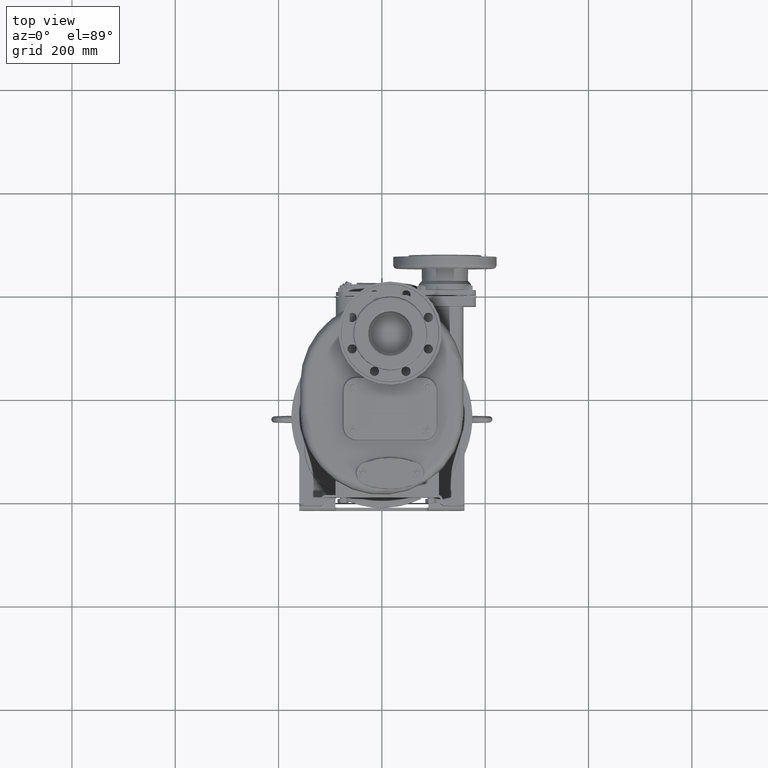
[diagram: clean part render]
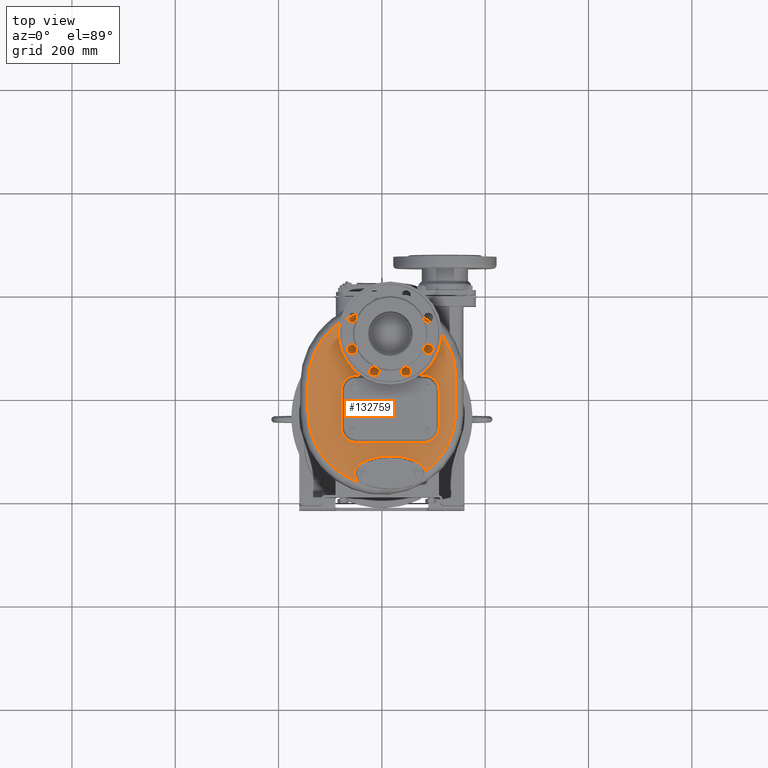
[diagram: same view with one face highlighted and labeled with its STEP entity id]
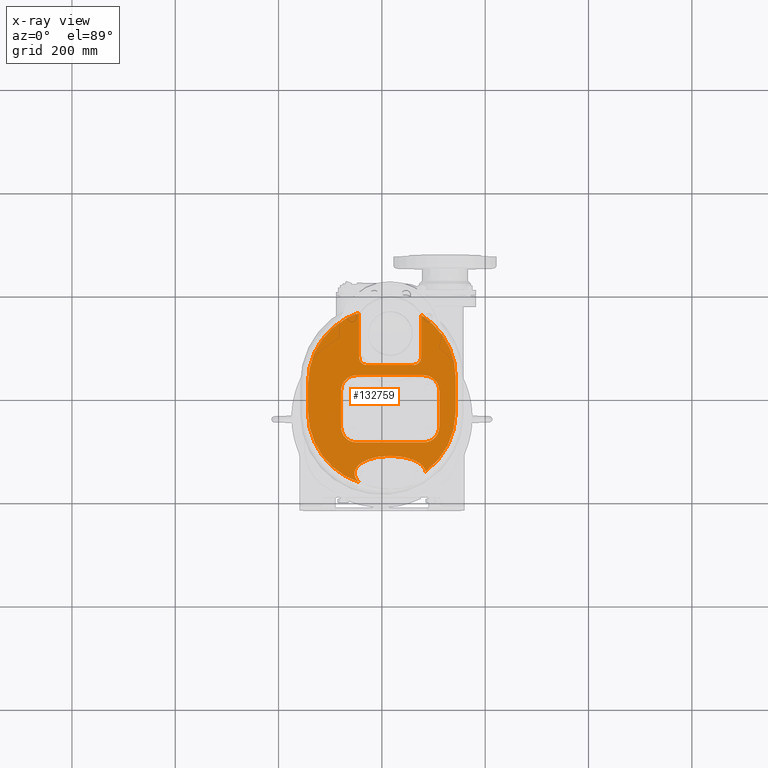
[diagram: x-ray of the same camera — body ghosted, the highlighted face saturated]
A machine part, top view. The second image highlights one B-rep face of the part: STEP entity #132759.
The next image is the same camera in x-ray: the body ghosted, the highlighted face saturated — about 0% of this face is hidden behind the body in this view.
In plain terms, the highlighted planar face has unit normal (0, 0, -1).
Its self-contained STEP definition (entity closure, byte-faithful):
#35876=DIRECTION('',(0.E0,1.E0,0.E0));
#35877=VECTOR('',#35876,8.179538951735E1);
#35878=CARTESIAN_POINT('',(7.6E1,2.63E2,1.56E2));
#35879=LINE('',#35878,#35877);
#35888=CARTESIAN_POINT('',(6.1E1,2.63E2,1.56E2));
#35889=DIRECTION('',(0.E0,0.E0,-1.E0));
#35890=DIRECTION('',(1.E0,0.E0,0.E0));
#35891=AXIS2_PLACEMENT_3D('',#35888,#35889,#35890);
#35893=DIRECTION('',(1.E0,0.E0,0.E0));
#35894=VECTOR('',#35893,9.E1);
#35895=CARTESIAN_POINT('',(-2.9E1,2.48E2,1.56E2));
#35896=LINE('',#35895,#35894);
#35905=CARTESIAN_POINT('',(-2.9E1,2.63E2,1.56E2));
#35906=DIRECTION('',(0.E0,0.E0,-1.E0));
#35907=DIRECTION('',(0.E0,-1.E0,0.E0));
#35908=AXIS2_PLACEMENT_3D('',#35905,#35906,#35907);
#35910=DIRECTION('',(0.E0,-1.E0,0.E0));
#35911=VECTOR('',#35910,8.603391713167E1);
#35912=CARTESIAN_POINT('',(-4.4E1,3.490339171317E2,1.56E2));
#35913=LINE('',#35912,#35911);
#40131=CARTESIAN_POINT('',(-5.299999999844E1,3.800000003638E1,
1.560000459372E2));
#40132=CARTESIAN_POINT('',(-5.299991556704E1,3.779914204129E1,
1.560000906800E2));
#40133=CARTESIAN_POINT('',(-5.299265250868E1,3.739752374237E1,
1.559999579153E2));
#40134=CARTESIAN_POINT('',(-5.296195777406E1,3.679551837007E1,
1.560000112766E2));
#40135=CARTESIAN_POINT('',(-5.291097849365E1,3.619354614939E1,
1.559999969785E2));
#40136=CARTESIAN_POINT('',(-5.283981775381E1,3.559137255555E1,
1.560000008096E2));
#40137=CARTESIAN_POINT('',(-5.274823401177E1,3.498875805934E1,
1.559999997831E2));
#40138=CARTESIAN_POINT('',(-5.263591214725E1,3.438550515496E1,
1.560000000581E2));
#40139=CARTESIAN_POINT('',(-5.250231210801E1,3.378151451266E1,
1.559999999844E2));
#40140=CARTESIAN_POINT('',(-5.234706054511E1,3.317656067463E1,
1.560000000042E2));
#40141=CARTESIAN_POINT('',(-5.216972222320E1,3.256957192952E1,
1.559999999989E2));
#40142=CARTESIAN_POINT('',(-5.196963418718E1,3.195965956961E1,
1.560000000003E2));
#40143=CARTESIAN_POINT('',(-5.174593990077E1,3.134592142667E1,
1.559999999999E2));
#40144=CARTESIAN_POINT('',(-5.149783001644E1,3.072813944369E1,1.56E2));
#40145=CARTESIAN_POINT('',(-5.122478709557E1,3.010701098534E1,1.56E2));
#40146=CARTESIAN_POINT('',(-5.092623644484E1,2.948317862121E1,1.56E2));
#40147=CARTESIAN_POINT('',(-5.060165402301E1,2.885734903097E1,1.56E2));
#40148=CARTESIAN_POINT('',(-5.024949692916E1,2.822800989448E1,
1.560000000001E2));
#40149=CARTESIAN_POINT('',(-4.986806202431E1,2.759394113823E1,
1.559999999998E2));
#40150=CARTESIAN_POINT('',(-4.945541630430E1,2.695397735535E1,
1.560000000009E2));
#40151=CARTESIAN_POINT('',(-4.900997448122E1,2.630786786529E1,
1.559999999968E2));
#40152=CARTESIAN_POINT('',(-4.853073275254E1,2.565630746311E1,
1.560000000119E2));
#40153=CARTESIAN_POINT('',(-4.801671051022E1,2.499998516231E1,
1.559999999554E2));
#40154=CARTESIAN_POINT('',(-4.746686230060E1,2.433950962577E1,
1.560000001663E2));
#40155=CARTESIAN_POINT('',(-4.687900499196E1,2.367452169881E1,
1.559999993793E2));
#40156=CARTESIAN_POINT('',(-4.625108293280E1,2.300495876296E1,
1.560000023164E2));
#40157=CARTESIAN_POINT('',(-4.558103566664E1,2.233087258560E1,
1.559999913551E2));
#40158=CARTESIAN_POINT('',(-4.486704207177E1,2.165251375178E1,
1.560000322631E2));
#40159=CARTESIAN_POINT('',(-4.436033381587E1,2.119759699417E1,
1.559999304826E2));
#40160=CARTESIAN_POINT('',(-4.409924901421E1,2.096964950101E1,
1.559999776601E2));
#40162=CARTESIAN_POINT('',(0.E0,1.57E2,1.56E2));
#40163=DIRECTION('',(0.E0,0.E0,1.E0));
#40164=DIRECTION('',(-1.E0,0.E0,0.E0));
#40165=AXIS2_PLACEMENT_3D('',#40162,#40163,#40164);
#40167=DIRECTION('',(0.E0,-1.E0,0.E0));
#40168=VECTOR('',#40167,5.597143148629E1);
#40169=CARTESIAN_POINT('',(-1.43E2,2.129714314863E2,1.56E2));
#40170=LINE('',#40169,#40168);
#40171=CARTESIAN_POINT('',(0.E0,2.129714314863E2,1.56E2));
#40172=DIRECTION('',(0.E0,0.E0,1.E0));
#40173=DIRECTION('',(-3.076923076923E-1,9.514859136041E-1,0.E0));
#40174=AXIS2_PLACEMENT_3D('',#40171,#40172,#40173);
#40176=CARTESIAN_POINT('',(0.E0,2.236632302862E2,1.56E2));
#40177=DIRECTION('',(0.E0,0.E0,1.E0));
#40178=DIRECTION('',(1.E0,0.E0,0.E0));
#40179=AXIS2_PLACEMENT_3D('',#40176,#40177,#40178);
#40181=DIRECTION('',(0.E0,1.E0,0.E0));
#40182=VECTOR('',#40181,6.666323028620E1);
#40183=CARTESIAN_POINT('',(1.43E2,1.57E2,1.56E2));
#40184=LINE('',#40183,#40182);
#40185=CARTESIAN_POINT('',(0.E0,1.57E2,1.56E2));
#40186=DIRECTION('',(0.E0,0.E0,1.E0));
#40187=DIRECTION('',(5.916859136736E-1,-8.061685801123E-1,0.E0));
#40188=AXIS2_PLACEMENT_3D('',#40185,#40186,#40187);
#40190=CARTESIAN_POINT('',(8.461108473852E1,4.171789323653E1,1.560000319229E2));
#40191=CARTESIAN_POINT('',(8.456936190467E1,4.191692953158E1,1.559999751457E2));
#40192=CARTESIAN_POINT('',(8.447860666957E1,4.231628121723E1,1.560000115349E2));
#40193=CARTESIAN_POINT('',(8.432063224216E1,4.291914267276E1,1.559999969092E2));
#40194=CARTESIAN_POINT('',(8.414005483451E1,4.352570534431E1,1.560000008282E2));
#40195=CARTESIAN_POINT('',(8.393647785783E1,4.413583123157E1,1.559999997781E2));
#40196=CARTESIAN_POINT('',(8.370936739076E1,4.474929238611E1,1.560000000595E2));
#40197=CARTESIAN_POINT('',(8.345819094438E1,4.536578655519E1,1.559999999841E2));
#40198=CARTESIAN_POINT('',(8.318239868774E1,4.598491047600E1,1.560000000043E2));
#40199=CARTESIAN_POINT('',(8.288139523039E1,4.660619745292E1,1.559999999989E2));
#40200=CARTESIAN_POINT('',(8.255385837473E1,4.723074438716E1,1.560000000003E2));
#40201=CARTESIAN_POINT('',(8.219835627059E1,4.785957451435E1,1.559999999999E2));
#40202=CARTESIAN_POINT('',(8.181339521719E1,4.849339224116E1,1.56E2));
#40203=CARTESIAN_POINT('',(8.139780971811E1,4.913211900842E1,1.56E2));
#40204=CARTESIAN_POINT('',(8.095047224905E1,4.977552097398E1,1.56E2));
#40205=CARTESIAN_POINT('',(8.047000220828E1,5.042359535994E1,1.56E2));
#40206=CARTESIAN_POINT('',(7.995453285990E1,5.107673697734E1,1.56E2));
#40207=CARTESIAN_POINT('',(7.940220645724E1,5.173515971981E1,1.56E2));
#40208=CARTESIAN_POINT('',(7.881099847664E1,5.239912298422E1,1.56E2));
#40209=CARTESIAN_POINT('',(7.817892297880E1,5.306870751221E1,1.56E2));
#40210=CARTESIAN_POINT('',(7.750366544746E1,5.374391483122E1,1.56E2));
#40211=CARTESIAN_POINT('',(7.678298042941E1,5.442455989674E1,1.56E2));
#40212=CARTESIAN_POINT('',(7.601481930858E1,5.511030927290E1,1.56E2));
#40213=CARTESIAN_POINT('',(7.519638577245E1,5.580112121047E1,1.56E2));
#40214=CARTESIAN_POINT('',(7.432481556470E1,5.649675134347E1,1.56E2));
#40215=CARTESIAN_POINT('',(7.339747203366E1,5.719684869266E1,1.56E2));
#40216=CARTESIAN_POINT('',(7.241130823044E1,5.790090565007E1,1.56E2));
#40217=CARTESIAN_POINT('',(7.136336901621E1,5.860821209321E1,1.56E2));
#40218=CARTESIAN_POINT('',(7.025079938779E1,5.931802983127E1,1.56E2));
#40219=CARTESIAN_POINT('',(6.907033362039E1,6.002935833638E1,1.56E2));
#40220=CARTESIAN_POINT('',(6.781904740582E1,6.074116348679E1,1.56E2));
#40221=CARTESIAN_POINT('',(6.649386788572E1,6.145207360638E1,1.56E2));
#40222=CARTESIAN_POINT('',(6.509191818531E1,6.216064954067E1,1.56E2));
#40223=CARTESIAN_POINT('',(6.361046142250E1,6.286512339224E1,1.56E2));
#40224=CARTESIAN_POINT('',(6.204693796325E1,6.356364185197E1,1.56E2));
#40225=CARTESIAN_POINT('',(6.039910592164E1,6.425399537446E1,1.56E2));
#40226=CARTESIAN_POINT('',(5.866501482611E1,6.493392869582E1,1.56E2));
#40227=CARTESIAN_POINT('',(5.684315658293E1,6.560078985197E1,1.56E2));
#40228=CARTESIAN_POINT('',(5.493250007385E1,6.625193618863E1,1.56E2));
#40229=CARTESIAN_POINT('',(5.293253163555E1,6.688433551507E1,1.56E2));
#40230=CARTESIAN_POINT('',(5.084344318936E1,6.749500820471E1,1.56E2));
#40231=CARTESIAN_POINT('',(4.866597114129E1,6.808064686175E1,1.56E2));
#40232=CARTESIAN_POINT('',(4.640180577853E1,6.863804364278E1,1.56E2));
#40233=CARTESIAN_POINT('',(4.405324963341E1,6.916373184947E1,1.56E2));
#40234=CARTESIAN_POINT('',(4.162369809895E1,6.965444994602E1,1.56E2));
#40235=CARTESIAN_POINT('',(3.911726017919E1,7.010673963199E1,1.56E2));
#40236=CARTESIAN_POINT('',(3.653909279869E1,7.051751482915E1,1.56E2));
#40237=CARTESIAN_POINT('',(3.389525950393E1,7.088353755273E1,1.56E2));
#40238=CARTESIAN_POINT('',(3.119255619890E1,7.120214114593E1,1.56E2));
#40239=CARTESIAN_POINT('',(2.843897820383E1,7.147056982729E1,1.56E2));
#40240=CARTESIAN_POINT('',(2.564269299743E1,7.168677036972E1,1.56E2));
#40241=CARTESIAN_POINT('',(2.281315562618E1,7.184880096208E1,1.56E2));
#40242=CARTESIAN_POINT('',(1.995970727616E1,7.195528636675E1,1.56E2));
#40243=CARTESIAN_POINT('',(1.709238329904E1,7.200540722053E1,1.56E2));
#40244=CARTESIAN_POINT('',(1.422135466750E1,7.199854660343E1,1.56E2));
#40245=CARTESIAN_POINT('',(1.135675376450E1,7.193496677173E1,1.56E2));
#40246=CARTESIAN_POINT('',(8.508581252920E0,7.181511242007E1,1.56E2));
#40247=CARTESIAN_POINT('',(5.686917589204E0,7.164002109046E1,1.56E2));
#40248=CARTESIAN_POINT('',(2.900953951262E0,7.141133346693E1,1.56E2));
#40249=CARTESIAN_POINT('',(1.597337441570E-1,7.113077946308E1,1.56E2));
#40250=CARTESIAN_POINT('',(-2.528304128456E0,7.080088582516E1,1.56E2));
#40251=CARTESIAN_POINT('',(-5.156076583602E0,7.042410978393E1,1.56E2));
#40252=CARTESIAN_POINT('',(-7.716395346625E0,7.000345861151E1,1.56E2));
#40253=CARTESIAN_POINT('',(-1.020399119432E1,6.954201321911E1,1.56E2));
#40254=CARTESIAN_POINT('',(-1.261357428653E1,6.904298514380E1,1.56E2));
#40255=CARTESIAN_POINT('',(-1.494146479671E1,6.850980431107E1,1.56E2));
#40256=CARTESIAN_POINT('',(-1.718435878816E1,6.794573512168E1,1.56E2));
#40257=CARTESIAN_POINT('',(-1.934017844812E1,6.735425090420E1,1.56E2));
#40258=CARTESIAN_POINT('',(-2.140738428800E1,6.673852869665E1,1.56E2));
#40259=CARTESIAN_POINT('',(-2.338542715983E1,6.610185182708E1,1.56E2));
#40260=CARTESIAN_POINT('',(-2.527421210025E1,6.544718613532E1,1.56E2));
#40261=CARTESIAN_POINT('',(-2.707448441654E1,6.477747442161E1,1.56E2));
#40262=CARTESIAN_POINT('',(-2.878728965858E1,6.409538083755E1,1.56E2));
#40263=CARTESIAN_POINT('',(-3.041435682394E1,6.340342411107E1,1.56E2));
#40264=CARTESIAN_POINT('',(-3.195760825661E1,6.270390222167E1,1.56E2));
#40265=CARTESIAN_POINT('',(-3.341943040072E1,6.199889138835E1,1.56E2));
#40266=CARTESIAN_POINT('',(-3.480234916491E1,6.129029259574E1,1.56E2));
#40267=CARTESIAN_POINT('',(-3.610918267017E1,6.057975075796E1,1.56E2));
#40268=CARTESIAN_POINT('',(-3.734282663441E1,5.986872688056E1,1.56E2));
#40269=CARTESIAN_POINT('',(-3.850629347607E1,5.915853797577E1,1.56E2));
#40270=CARTESIAN_POINT('',(-3.960257062760E1,5.845019899405E1,1.56E2));
#40271=CARTESIAN_POINT('',(-4.063482667284E1,5.774473232284E1,1.56E2));
#40272=CARTESIAN_POINT('',(-4.160602624233E1,5.704274570803E1,1.56E2));
#40273=CARTESIAN_POINT('',(-4.251929453237E1,5.634482428323E1,1.56E2));
#40274=CARTESIAN_POINT('',(-4.337752560947E1,5.565150040431E1,1.56E2));
#40275=CARTESIAN_POINT('',(-4.418353062450E1,5.496294106371E1,1.56E2));
#40276=CARTESIAN_POINT('',(-4.494010553563E1,5.427938437101E1,1.56E2));
#40277=CARTESIAN_POINT('',(-4.564968507667E1,5.360111362838E1,1.56E2));
#40278=CARTESIAN_POINT('',(-4.631468169863E1,5.292809857070E1,1.56E2));
#40279=CARTESIAN_POINT('',(-4.693741892553E1,5.226038777362E1,1.56E2));
#40280=CARTESIAN_POINT('',(-4.751994651119E1,5.159804294989E1,1.56E2));
#40281=CARTESIAN_POINT('',(-4.806431165344E1,5.094088033667E1,1.56E2));
#40282=CARTESIAN_POINT('',(-4.857237323649E1,5.028884761643E1,1.56E2));
#40283=CARTESIAN_POINT('',(-4.904581720419E1,4.964186295639E1,1.56E2));
#40284=CARTESIAN_POINT('',(-4.948630659575E1,4.899967744185E1,1.56E2));
#40285=CARTESIAN_POINT('',(-4.989530468740E1,4.836216648646E1,1.56E2));
#40286=CARTESIAN_POINT('',(-5.027421423514E1,4.772911099318E1,1.56E2));
#40287=CARTESIAN_POINT('',(-5.062431908785E1,4.710024263552E1,1.56E2));
#40288=CARTESIAN_POINT('',(-5.094675969572E1,4.647539745349E1,1.56E2));
#40289=CARTESIAN_POINT('',(-5.124264267001E1,4.585429255175E1,1.56E2));
#40290=CARTESIAN_POINT('',(-5.151294154204E1,4.523661428940E1,1.56E2));
#40291=CARTESIAN_POINT('',(-5.175861574098E1,4.462199835506E1,1.56E2));
#40292=CARTESIAN_POINT('',(-5.198042608768E1,4.401015543234E1,
1.560000000002E2));
#40293=CARTESIAN_POINT('',(-5.217899374015E1,4.340104628295E1,
1.559999999994E2));
#40294=CARTESIAN_POINT('',(-5.235495335957E1,4.279462042535E1,
1.560000000022E2));
#40295=CARTESIAN_POINT('',(-5.250889680530E1,4.219036140037E1,
1.559999999919E2));
#40296=CARTESIAN_POINT('',(-5.264140944417E1,4.158763892848E1,
1.560000000302E2));
#40297=CARTESIAN_POINT('',(-5.275299643900E1,4.098570455102E1,
1.559999998873E2));
#40298=CARTESIAN_POINT('',(-5.284377740780E1,4.038479381298E1,
1.560000004207E2));
#40299=CARTESIAN_POINT('',(-5.291395557565E1,3.978534764933E1,
1.559999984298E2));
#40300=CARTESIAN_POINT('',(-5.296379684764E1,3.918775735068E1,
1.560000058600E2));
#40301=CARTESIAN_POINT('',(-5.299344914867E1,3.859233047235E1,
1.559999781301E2));
#40302=CARTESIAN_POINT('',(-5.299999795748E1,3.819716499513E1,
1.560000471230E2));
#40303=CARTESIAN_POINT('',(-5.299999999844E1,3.800000003638E1,
1.560000459372E2));
#40305=DIRECTION('',(-1.E0,2.916941901723E-12,0.E0));
#40306=VECTOR('',#40305,1.299999999988E2);
#40307=CARTESIAN_POINT('',(8.099999999924E1,2.279999999994E2,1.56E2));
#40308=LINE('',#40307,#40306);
#40309=CARTESIAN_POINT('',(-4.9E1,1.98E2,1.56E2));
#40310=DIRECTION('',(0.E0,0.E0,1.E0));
#40311=DIRECTION('',(0.E0,1.E0,0.E0));
#40312=AXIS2_PLACEMENT_3D('',#40309,#40310,#40311);
#40314=DIRECTION('',(-5.417380829739E-12,-1.E0,0.E0));
#40315=VECTOR('',#40314,6.999999999879E1);
#40316=CARTESIAN_POINT('',(-7.899999999937E1,1.979999999992E2,1.56E2));
#40317=LINE('',#40316,#40315);
#40318=CARTESIAN_POINT('',(-4.9E1,1.28E2,1.56E2));
#40319=DIRECTION('',(0.E0,0.E0,1.E0));
#40320=DIRECTION('',(-1.E0,0.E0,0.E0));
#40321=AXIS2_PLACEMENT_3D('',#40318,#40319,#40320);
#40323=DIRECTION('',(1.E0,-2.916941901723E-12,0.E0));
#40324=VECTOR('',#40323,1.299999999988E2);
#40325=CARTESIAN_POINT('',(-4.899999999924E1,9.800000000063E1,1.56E2));
#40326=LINE('',#40325,#40324);
#40327=CARTESIAN_POINT('',(8.1E1,1.28E2,1.56E2));
#40328=DIRECTION('',(0.E0,0.E0,1.E0));
#40329=DIRECTION('',(0.E0,-1.E0,0.E0));
#40330=AXIS2_PLACEMENT_3D('',#40327,#40328,#40329);
#40332=DIRECTION('',(5.417177817528E-12,1.E0,0.E0));
#40333=VECTOR('',#40332,6.999999999879E1);
#40334=CARTESIAN_POINT('',(1.109999999994E2,1.280000000008E2,1.56E2));
#40335=LINE('',#40334,#40333);
#40336=CARTESIAN_POINT('',(8.1E1,1.98E2,1.56E2));
#40337=DIRECTION('',(0.E0,0.E0,1.E0));
#40338=DIRECTION('',(1.E0,0.E0,0.E0));
#40339=AXIS2_PLACEMENT_3D('',#40336,#40337,#40338);
#77244=CARTESIAN_POINT('',(-2.9E1,2.48E2,1.56E2));
#77245=CARTESIAN_POINT('',(6.1E1,2.48E2,1.56E2));
#77246=VERTEX_POINT('',#77244);
#77247=VERTEX_POINT('',#77245);
#77248=CARTESIAN_POINT('',(7.6E1,2.63E2,1.56E2));
#77249=VERTEX_POINT('',#77248);
#77250=CARTESIAN_POINT('',(-4.4E1,2.63E2,1.56E2));
#77251=VERTEX_POINT('',#77250);
#77260=CARTESIAN_POINT('',(1.43E2,2.236632302862E2,1.56E2));
#77261=CARTESIAN_POINT('',(7.6E1,3.447953895173E2,1.56E2));
#77262=VERTEX_POINT('',#77260);
#77263=VERTEX_POINT('',#77261);
#77264=CARTESIAN_POINT('',(1.43E2,1.57E2,1.56E2));
#77265=VERTEX_POINT('',#77264);
#77270=CARTESIAN_POINT('',(-1.43E2,2.129714314863E2,1.56E2));
#77271=CARTESIAN_POINT('',(-1.43E2,1.57E2,1.56E2));
#77272=VERTEX_POINT('',#77270);
#77273=VERTEX_POINT('',#77271);
#77276=CARTESIAN_POINT('',(-4.4E1,3.490339171317E2,1.56E2));
#77277=VERTEX_POINT('',#77276);
#77329=VERTEX_POINT('',#40131);
#77330=VERTEX_POINT('',#40160);
#77332=VERTEX_POINT('',#40190);
#77356=CARTESIAN_POINT('',(8.099999999924E1,2.279999999994E2,1.56E2));
#77357=CARTESIAN_POINT('',(-4.899999999955E1,2.279999999998E2,1.56E2));
#77358=VERTEX_POINT('',#77356);
#77359=VERTEX_POINT('',#77357);
#77360=CARTESIAN_POINT('',(-7.9E1,1.98E2,1.56E2));
#77361=VERTEX_POINT('',#77360);
#77364=CARTESIAN_POINT('',(-7.899999999975E1,1.280000000005E2,1.56E2));
#77365=VERTEX_POINT('',#77364);
#77368=CARTESIAN_POINT('',(-4.9E1,9.8E1,1.56E2));
#77369=VERTEX_POINT('',#77368);
#77372=CARTESIAN_POINT('',(8.099999999955E1,9.800000000025E1,1.56E2));
#77373=VERTEX_POINT('',#77372);
#77376=CARTESIAN_POINT('',(1.11E2,1.98E2,1.56E2));
#77377=VERTEX_POINT('',#77376);
#77380=CARTESIAN_POINT('',(1.109999999994E2,1.280000000008E2,1.56E2));
#77381=VERTEX_POINT('',#77380);
#132714=CARTESIAN_POINT('',(0.E0,1.58E2,1.56E2));
#132715=DIRECTION('',(0.E0,0.E0,-1.E0));
#132716=DIRECTION('',(-1.E0,0.E0,0.E0));
#132717=AXIS2_PLACEMENT_3D('',#132714,#132715,#132716);
#132718=PLANE('',#132717);
#132720=ORIENTED_EDGE('',*,*,#132719,.T.);
#132722=ORIENTED_EDGE('',*,*,#132721,.F.);
#132724=ORIENTED_EDGE('',*,*,#132723,.F.);
#132725=ORIENTED_EDGE('',*,*,#132703,.F.);
#132726=ORIENTED_EDGE('',*,*,#129104,.T.);
#132727=ORIENTED_EDGE('',*,*,#129089,.F.);
#132728=ORIENTED_EDGE('',*,*,#129074,.T.);
#132729=ORIENTED_EDGE('',*,*,#129059,.F.);
#132730=ORIENTED_EDGE('',*,*,#129044,.T.);
#132732=ORIENTED_EDGE('',*,*,#132731,.F.);
#132734=ORIENTED_EDGE('',*,*,#132733,.F.);
#132736=ORIENTED_EDGE('',*,*,#132735,.F.);
#132738=ORIENTED_EDGE('',*,*,#132737,.T.);
#132739=EDGE_LOOP('',(#132720,#132722,#132724,#132725,#132726,#132727,#132728,
#132729,#132730,#132732,#132734,#132736,#132738));
#132740=FACE_OUTER_BOUND('',#132739,.F.);
#132742=ORIENTED_EDGE('',*,*,#132741,.T.);
#132744=ORIENTED_EDGE('',*,*,#132743,.T.);
#132746=ORIENTED_EDGE('',*,*,#132745,.T.);
#132748=ORIENTED_EDGE('',*,*,#132747,.T.);
#132750=ORIENTED_EDGE('',*,*,#132749,.T.);
#132752=ORIENTED_EDGE('',*,*,#132751,.T.);
#132754=ORIENTED_EDGE('',*,*,#132753,.T.);
#132756=ORIENTED_EDGE('',*,*,#132755,.T.);
#132757=EDGE_LOOP('',(#132742,#132744,#132746,#132748,#132750,#132752,#132754,
#132756));
#132758=FACE_BOUND('',#132757,.F.);
#132759=ADVANCED_FACE('',(#132740,#132758),#132718,.F.);
#35892=CIRCLE('',#35891,1.5E1);
#35909=CIRCLE('',#35908,1.5E1);
#40161=B_SPLINE_CURVE_WITH_KNOTS('',3,(#40131,#40132,#40133,#40134,#40135,
#40136,#40137,#40138,#40139,#40140,#40141,#40142,#40143,#40144,#40145,#40146,
#40147,#40148,#40149,#40150,#40151,#40152,#40153,#40154,#40155,#40156,#40157,
#40158,#40159,#40160),.UNSPECIFIED.,.F.,.F.,(4,1,1,1,1,1,1,1,1,1,1,1,1,1,1,1,1,
1,1,1,1,1,1,1,1,1,1,4),(0.E0,3.703703703704E-2,7.407407407407E-2,
1.111111111111E-1,1.481481481481E-1,1.851851851852E-1,2.222222222222E-1,
2.592592592593E-1,2.962962962963E-1,3.333333333333E-1,3.703703703704E-1,
4.074074074074E-1,4.444444444444E-1,4.814814814815E-1,5.185185185185E-1,
5.555555555556E-1,5.925925925926E-1,6.296296296296E-1,6.666666666667E-1,
7.037037037037E-1,7.407407407407E-1,7.777777777778E-1,8.148148148148E-1,
8.518518518519E-1,8.888888888889E-1,9.259259259259E-1,9.629629629630E-1,1.E0),
.UNSPECIFIED.);
#40166=CIRCLE('',#40165,1.43E2);
#40175=CIRCLE('',#40174,1.43E2);
#40180=CIRCLE('',#40179,1.43E2);
#40189=CIRCLE('',#40188,1.43E2);
#40304=B_SPLINE_CURVE_WITH_KNOTS('',3,(#40190,#40191,#40192,#40193,#40194,
#40195,#40196,#40197,#40198,#40199,#40200,#40201,#40202,#40203,#40204,#40205,
#40206,#40207,#40208,#40209,#40210,#40211,#40212,#40213,#40214,#40215,#40216,
#40217,#40218,#40219,#40220,#40221,#40222,#40223,#40224,#40225,#40226,#40227,
#40228,#40229,#40230,#40231,#40232,#40233,#40234,#40235,#40236,#40237,#40238,
#40239,#40240,#40241,#40242,#40243,#40244,#40245,#40246,#40247,#40248,#40249,
#40250,#40251,#40252,#40253,#40254,#40255,#40256,#40257,#40258,#40259,#40260,
#40261,#40262,#40263,#40264,#40265,#40266,#40267,#40268,#40269,#40270,#40271,
#40272,#40273,#40274,#40275,#40276,#40277,#40278,#40279,#40280,#40281,#40282,
#40283,#40284,#40285,#40286,#40287,#40288,#40289,#40290,#40291,#40292,#40293,
#40294,#40295,#40296,#40297,#40298,#40299,#40300,#40301,#40302,#40303),
.UNSPECIFIED.,.F.,.F.,(4,1,1,1,1,1,1,1,1,1,1,1,1,1,1,1,1,1,1,1,1,1,1,1,1,1,1,1,
1,1,1,1,1,1,1,1,1,1,1,1,1,1,1,1,1,1,1,1,1,1,1,1,1,1,1,1,1,1,1,1,1,1,1,1,1,1,1,1,
1,1,1,1,1,1,1,1,1,1,1,1,1,1,1,1,1,1,1,1,1,1,1,1,1,1,1,1,1,1,1,1,1,1,1,1,1,1,1,1,
1,1,1,4),(0.E0,9.009009009009E-3,1.801801801802E-2,2.702702702703E-2,
3.603603603604E-2,4.504504504505E-2,5.405405405405E-2,6.306306306306E-2,
7.207207207207E-2,8.108108108108E-2,9.009009009009E-2,9.909909909910E-2,
1.081081081081E-1,1.171171171171E-1,1.261261261261E-1,1.351351351351E-1,
1.441441441441E-1,1.531531531532E-1,1.621621621622E-1,1.711711711712E-1,
1.801801801802E-1,1.891891891892E-1,1.981981981982E-1,2.072072072072E-1,
2.162162162162E-1,2.252252252252E-1,2.342342342342E-1,2.432432432432E-1,
2.522522522523E-1,2.612612612613E-1,2.702702702703E-1,2.792792792793E-1,
2.882882882883E-1,2.972972972973E-1,3.063063063063E-1,3.153153153153E-1,
3.243243243243E-1,3.333333333333E-1,3.423423423423E-1,3.513513513514E-1,
3.603603603604E-1,3.693693693694E-1,3.783783783784E-1,3.873873873874E-1,
3.963963963964E-1,4.054054054054E-1,4.144144144144E-1,4.234234234234E-1,
4.324324324324E-1,4.414414414414E-1,4.504504504505E-1,4.594594594595E-1,
4.684684684685E-1,4.774774774775E-1,4.864864864865E-1,4.954954954955E-1,
5.045045045045E-1,5.135135135135E-1,5.225225225225E-1,5.315315315315E-1,
5.405405405405E-1,5.495495495495E-1,5.585585585586E-1,5.675675675676E-1,
5.765765765766E-1,5.855855855856E-1,5.945945945946E-1,6.036036036036E-1,
6.126126126126E-1,6.216216216216E-1,6.306306306306E-1,6.396396396396E-1,
6.486486486486E-1,6.576576576577E-1,6.666666666667E-1,6.756756756757E-1,
6.846846846847E-1,6.936936936937E-1,7.027027027027E-1,7.117117117117E-1,
7.207207207207E-1,7.297297297297E-1,7.387387387387E-1,7.477477477477E-1,
7.567567567568E-1,7.657657657658E-1,7.747747747748E-1,7.837837837838E-1,
7.927927927928E-1,8.018018018018E-1,8.108108108108E-1,8.198198198198E-1,
8.288288288288E-1,8.378378378378E-1,8.468468468468E-1,8.558558558559E-1,
8.648648648649E-1,8.738738738739E-1,8.828828828829E-1,8.918918918919E-1,
9.009009009009E-1,9.099099099099E-1,9.189189189189E-1,9.279279279279E-1,
9.369369369369E-1,9.459459459459E-1,9.549549549550E-1,9.639639639640E-1,
9.729729729730E-1,9.819819819820E-1,9.909909909910E-1,1.E0),.UNSPECIFIED.);
#40313=CIRCLE('',#40312,3.E1);
#40322=CIRCLE('',#40321,3.E1);
#40331=CIRCLE('',#40330,3.E1);
#40340=CIRCLE('',#40339,3.E1);
#129044=EDGE_CURVE('',#77249,#77263,#35879,.T.);
#129059=EDGE_CURVE('',#77249,#77247,#35892,.T.);
#129074=EDGE_CURVE('',#77246,#77247,#35896,.T.);
#129089=EDGE_CURVE('',#77246,#77251,#35909,.T.);
#129104=EDGE_CURVE('',#77277,#77251,#35913,.T.);
#132703=EDGE_CURVE('',#77277,#77272,#40175,.T.);
#132719=EDGE_CURVE('',#77329,#77330,#40161,.T.);
#132721=EDGE_CURVE('',#77273,#77330,#40166,.T.);
#132723=EDGE_CURVE('',#77272,#77273,#40170,.T.);
#132731=EDGE_CURVE('',#77262,#77263,#40180,.T.);
#132733=EDGE_CURVE('',#77265,#77262,#40184,.T.);
#132735=EDGE_CURVE('',#77332,#77265,#40189,.T.);
#132737=EDGE_CURVE('',#77332,#77329,#40304,.T.);
#132741=EDGE_CURVE('',#77358,#77359,#40308,.T.);
#132743=EDGE_CURVE('',#77359,#77361,#40313,.T.);
#132745=EDGE_CURVE('',#77361,#77365,#40317,.T.);
#132747=EDGE_CURVE('',#77365,#77369,#40322,.T.);
#132749=EDGE_CURVE('',#77369,#77373,#40326,.T.);
#132751=EDGE_CURVE('',#77373,#77381,#40331,.T.);
#132753=EDGE_CURVE('',#77381,#77377,#40335,.T.);
#132755=EDGE_CURVE('',#77377,#77358,#40340,.T.);